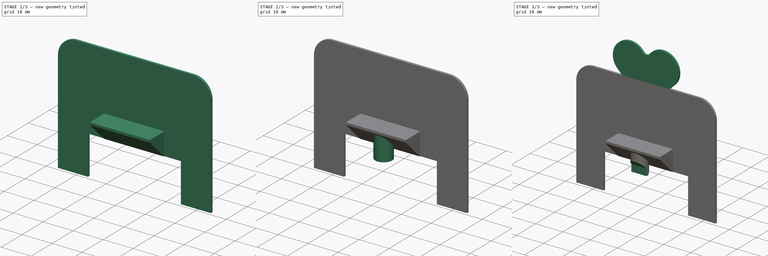
[diagram: build sequence overview — one tinted view per stage of 3, left to right]
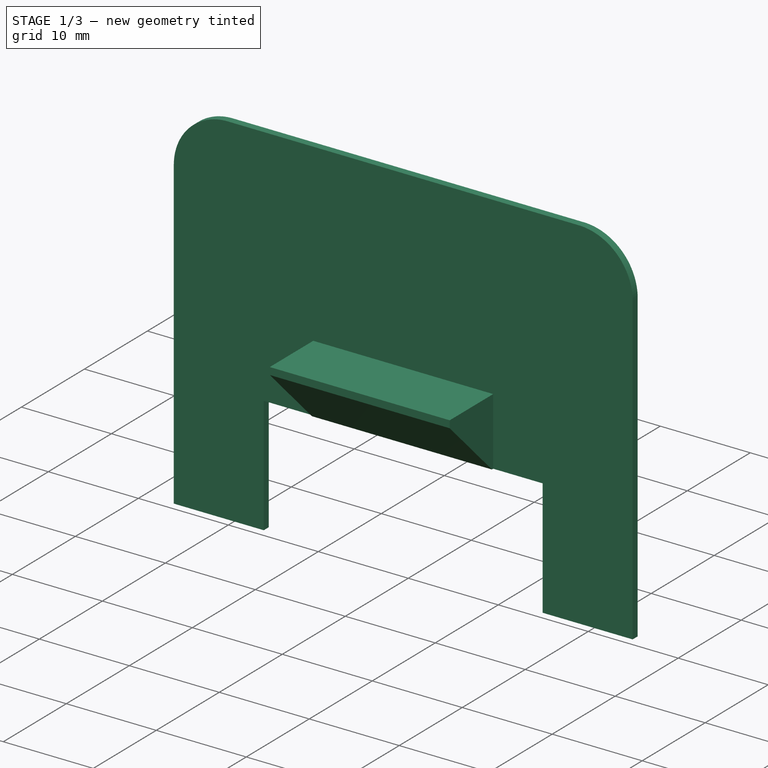
[diagram: stage 1 of 3 — iso view after this stage's code; geometry added in this stage tinted green]
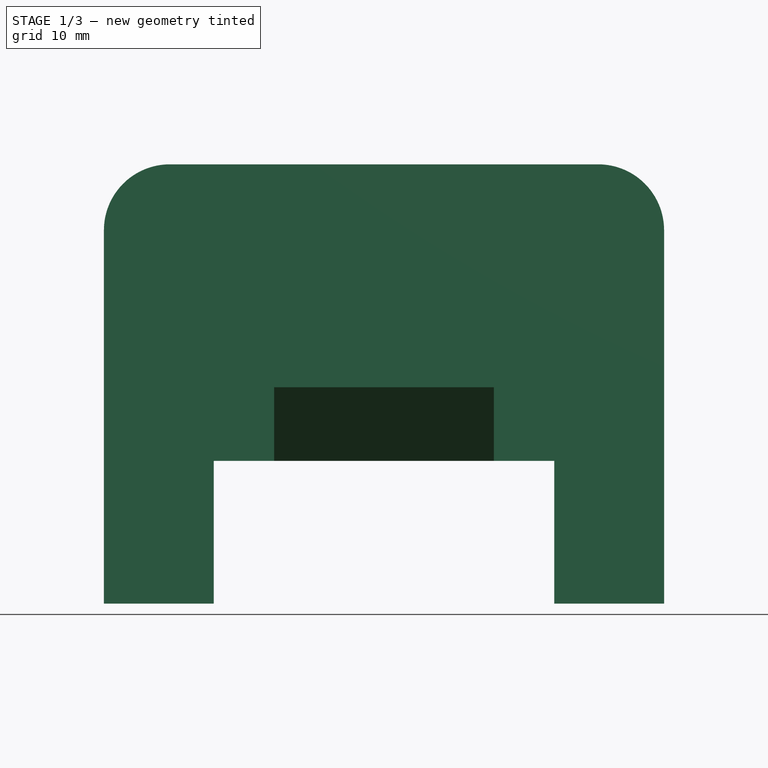
[diagram: stage 1 of 3 — front view after this stage's code; geometry added in this stage tinted green]
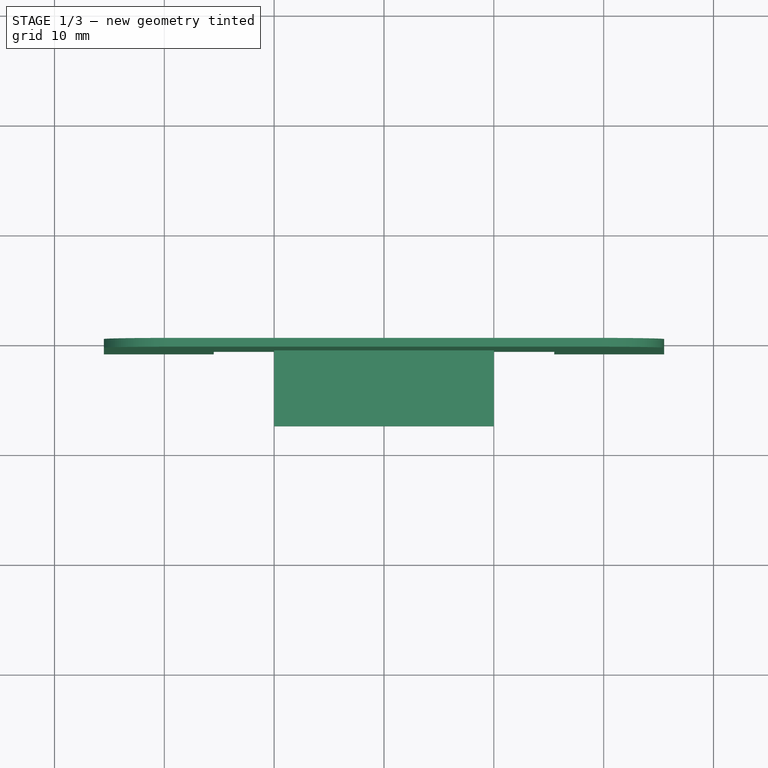
[diagram: stage 1 of 3 — top view after this stage's code; geometry added in this stage tinted green]
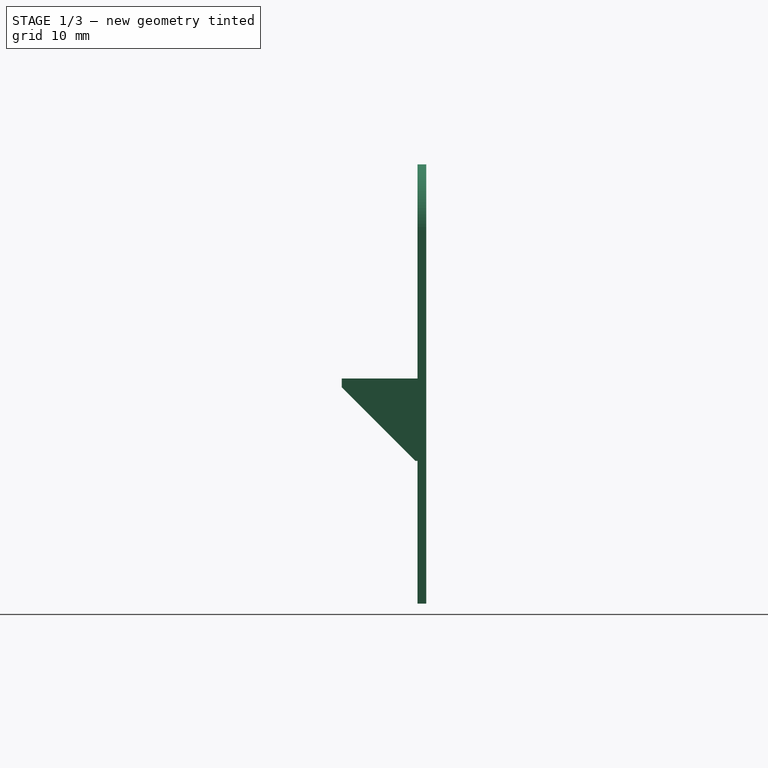
[diagram: stage 1 of 3 — right view after this stage's code; geometry added in this stage tinted green]
FCSTD DOCUMENT  (FreeCAD 0.19R24366 (Git))
Label: escornaface-eyes
License: Creative Commons Attribution-ShareAlike
LicenseURL: http://creativecommons.org/licenses/by-sa/4.0/
objects: Sketcher::SketchObject×5, PartDesign::Pad×4, PartDesign::Pocket×1, PartDesign::CoordinateSystem×1, PartDesign::Body×1, App::Part×1
note: 17 computed .brp shape members not serialized (recipe doc carries the construction recipe); baked Part::Feature solids carry a one-line shape summary decoded from their .brp

FEATURE [Sketcher::SketchObject] Sketch  label="Sketch-base"
  FullyConstrained = true
  MapMode = 5
  Placement = pos=(0,0,0) rot=(1,0,0;1.5708rad)
  Support = -> [XZ_Plane002]
  sketch-geometry (10):
    g0: LineSegment StartX=-25.5 StartY=13.5 StartZ=0 EndX=-25.5 EndY=47.5 EndZ=0
    g1: ArcOfCircle CenterX=-19.5 CenterY=47.5 CenterZ=0 NormalX=0 NormalY=0 NormalZ=1 AngleXU=0 Radius=6 StartAngle=1.5708 EndAngle=3.14159
    g2: LineSegment StartX=-19.5 StartY=53.5 StartZ=0 EndX=19.5 EndY=53.5 EndZ=0
    g3: ArcOfCircle CenterX=19.5 CenterY=47.5 CenterZ=0 NormalX=0 NormalY=0 NormalZ=1 AngleXU=0 Radius=6 StartAngle=5.28e-14 EndAngle=1.5708
    g4: LineSegment StartX=25.5 StartY=47.5 StartZ=0 EndX=25.5 EndY=13.5 EndZ=0
    g5: LineSegment StartX=25.5 StartY=13.5 StartZ=0 EndX=15.5 EndY=13.5 EndZ=0
    g6: LineSegment StartX=15.5 StartY=13.5 StartZ=0 EndX=15.5 EndY=26.5 EndZ=0
    g7: LineSegment StartX=15.5 StartY=26.5 StartZ=0 EndX=-15.5 EndY=26.5 EndZ=0
    g8: LineSegment StartX=-15.5 StartY=26.5 StartZ=0 EndX=-15.5 EndY=13.5 EndZ=0
    g9: LineSegment StartX=-15.5 StartY=13.5 StartZ=0 EndX=-25.5 EndY=13.5 EndZ=0
  constraints (27):
    c: Vertical(g0)
    c: Tangent(g0,g1) = 1.5708
    c: Tangent(g1,g2) = 1.5708
    c: Tangent(g2,g3) = 1.5708
    c: Tangent(g3,g4) = 1.5708
    c: Coincident(g4,g5)
    c: Horizontal(g5)
    c: Coincident(g5,g6)
    c: Vertical(g6)
    c: Coincident(g6,g7)
    c: Horizontal(g7)
    c: Coincident(g7,g8)
    c: Vertical(g8)
    c: Coincident(g8,g9)
    c: Coincident(g9,g0)
    c: Horizontal(g9)
    c: Equal(g9,g5)
    c: Vertical(g4)
    c: Horizontal(g2)
    c: Symmetric(g8,g5,g-2)
    c: Equal(g1,g3)
    c: DistanceX(g0,g3) = 51
    c: DistanceY(g4,g2) = 40
    c: DistanceX(g5,g5) = 10
    c: DistanceY(g6,g6) = 13
    c: DistanceY(g5) = 13.5
    c: Radius(g1) = 6
FEATURE [PartDesign::Pad] Pad  label="Pad-base"
  Direction = (1,1,1)
  Length = 0.8
  Length2 = 100
  Placement = pos=(0,0,0) rot=(1,0,0;1.5708rad)
  Profile = -> Sketch
  Type = 0
FEATURE [Sketcher::SketchObject] Sketch001  label="Sketch-support"
  FullyConstrained = true
  MapMode = 5
  Placement = pos=(0,0,0) rot=(0.57735,0.57735,0.57735;2.0944rad)
  Support = -> [YZ_Plane002]
  sketch-geometry (5):
    g0: LineSegment StartX=-1 StartY=26.5 StartZ=0 EndX=-7.7 EndY=33.2 EndZ=0
    g1: LineSegment StartX=-7.7 StartY=34 StartZ=0 EndX=0 EndY=34 EndZ=0
    g2: LineSegment StartX=0 StartY=34 StartZ=0 EndX=0 EndY=26.5 EndZ=0
    g3: LineSegment StartX=-1 StartY=26.5 StartZ=0 EndX=0 EndY=26.5 EndZ=0
    g4: LineSegment StartX=-7.7 StartY=33.2 StartZ=0 EndX=-7.7 EndY=34 EndZ=0
  constraints (15):
    c: Horizontal(g1)
    c: Coincident(g1,g2)
    c: Vertical(g2)
    c: Angle(g2,g0) = 0.785398
    c: Horizontal(g3)
    c: DistanceY(g1) = 34
    c: Coincident(g0,g3)
    c: Coincident(g2,g3)
    c: DistanceY(g2,g2) = 7.5
    c: PointOnObject(g2,g-2)
    c: Vertical(g4)
    c: Coincident(g1,g4)
    c: Coincident(g0,g4)
    c: DistanceX(g3,g3) = 1
    c: DistanceY(g4,g4) = 0.8
FEATURE [PartDesign::Pad] Pad001  label="Pad-support"
  BaseFeature = -> Pad
  Direction = (1,1,1)
  Length = 20
  Length2 = 100
  Midplane = true
  Placement = pos=(0,0,0) rot=(1,0,0;1.5708rad)
  Profile = -> Sketch001
  Refine = true
  Type = 0
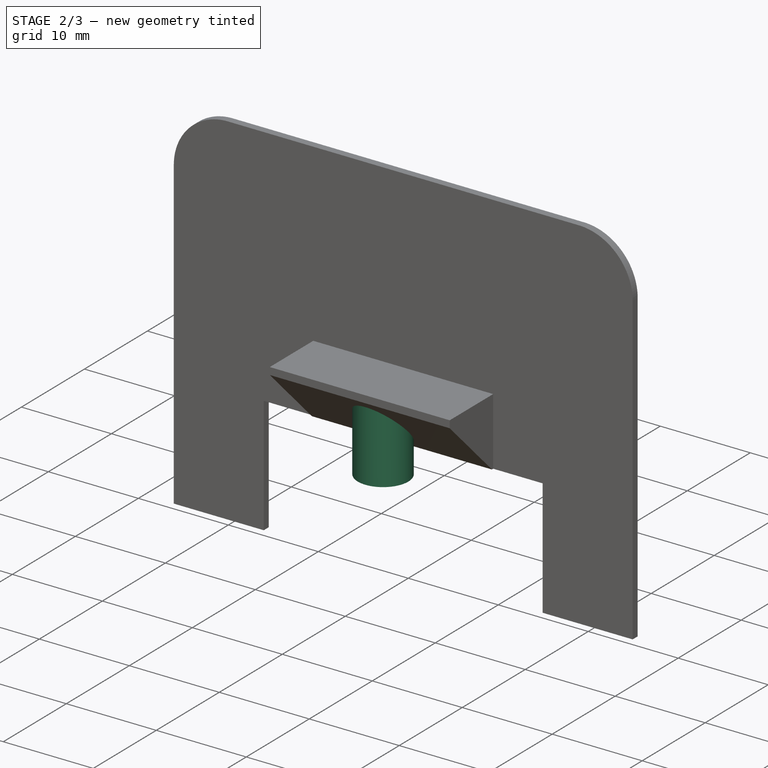
[diagram: stage 2 of 3 — iso view after this stage's code; geometry added in this stage tinted green]
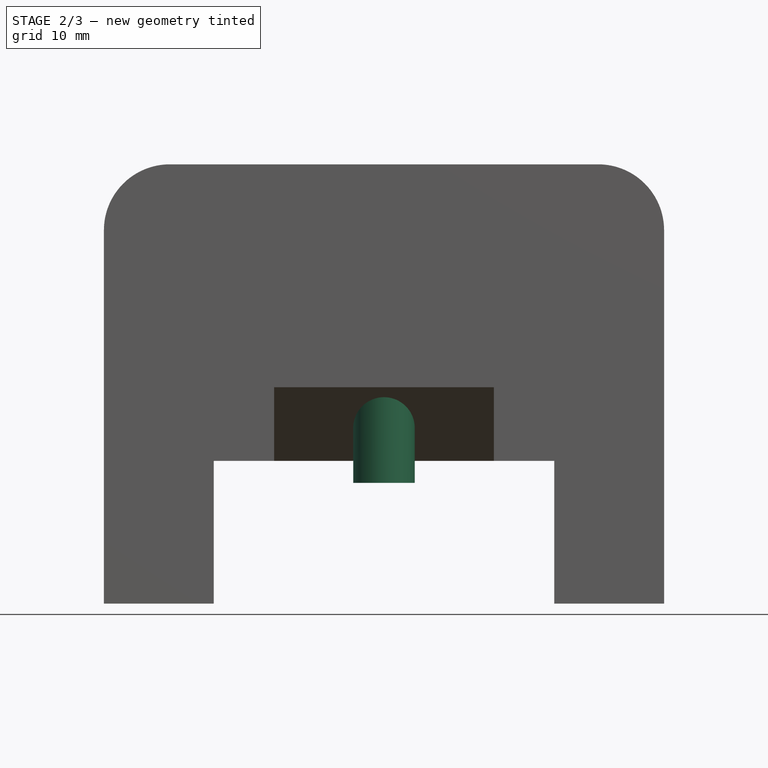
[diagram: stage 2 of 3 — front view after this stage's code; geometry added in this stage tinted green]
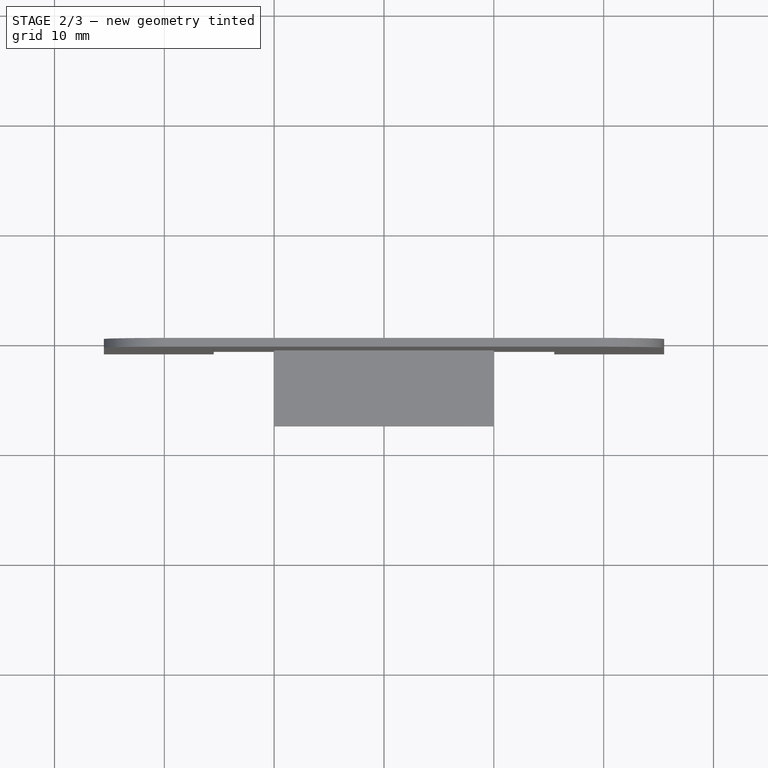
[diagram: stage 2 of 3 — top view after this stage's code; geometry added in this stage tinted green]
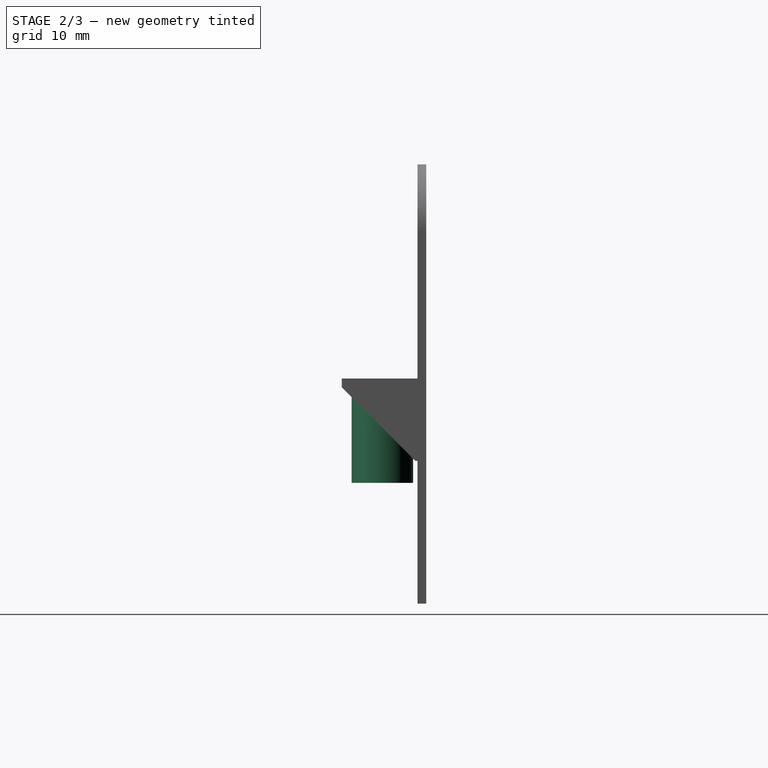
[diagram: stage 2 of 3 — right view after this stage's code; geometry added in this stage tinted green]
FEATURE [Sketcher::SketchObject] Sketch003  label="Sketch-hook"
  FullyConstrained = false
  MapMode = 5
  Placement = pos=(-9.5e-15,2.25e-14,34) rot=(0,0,1;3.14159rad)
  Support = -> [Pad001]
  sketch-geometry (1):
    g0: Circle CenterX=0 CenterY=4 CenterZ=0 NormalX=0 NormalY=0 NormalZ=1 AngleXU=0 Radius=2.8
  constraints (2):
    c: Radius(g0) = 2.8
    c: DistanceY(g0) = 4
FEATURE [PartDesign::Pad] Pad002  label="Pad-hook"
  BaseFeature = -> Pad001
  Direction = (1,1,1)
  Length = 9.5
  Length2 = 100
  Placement = pos=(0,0,0) rot=(1,0,0;1.5708rad)
  Profile = -> Sketch003
  Refine = true
  Reversed = true
  Type = 0
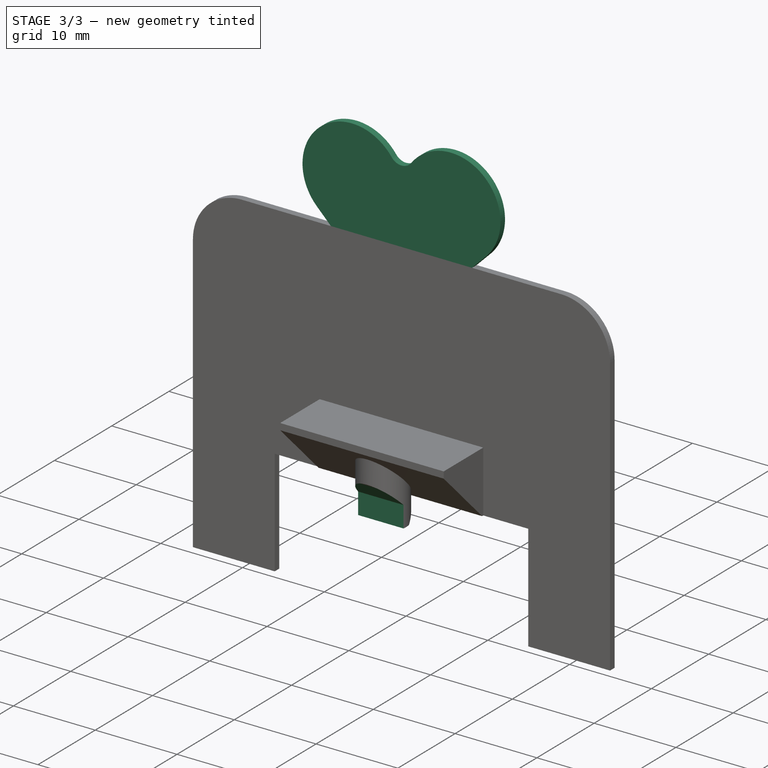
[diagram: stage 3 of 3 — iso view after this stage's code; geometry added in this stage tinted green]
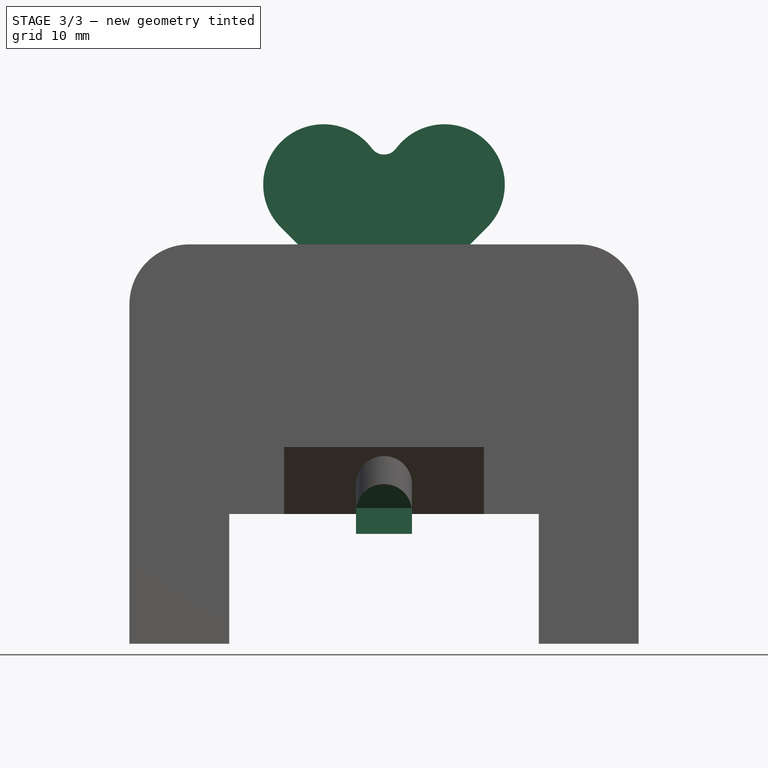
[diagram: stage 3 of 3 — front view after this stage's code; geometry added in this stage tinted green]
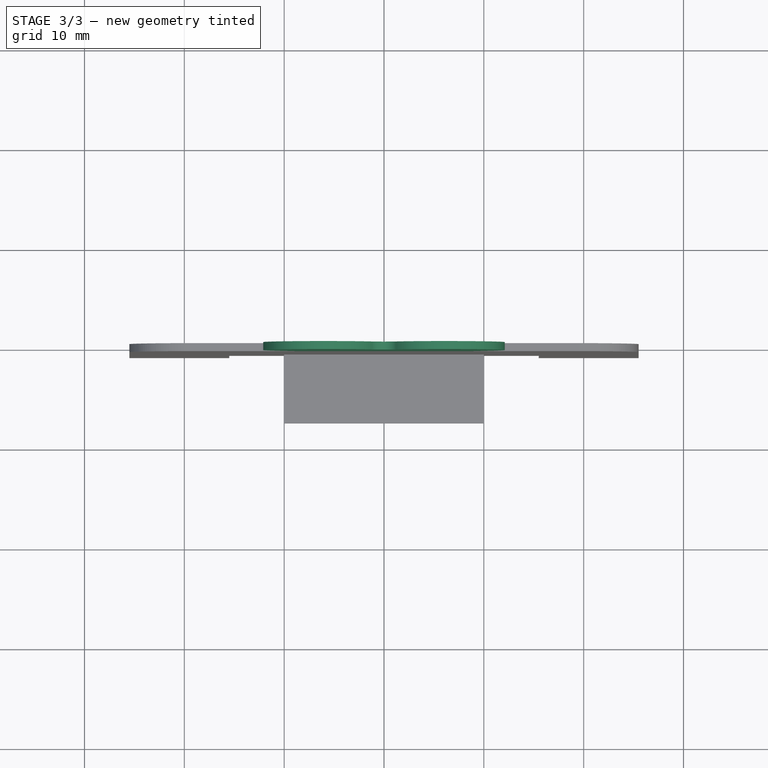
[diagram: stage 3 of 3 — top view after this stage's code; geometry added in this stage tinted green]
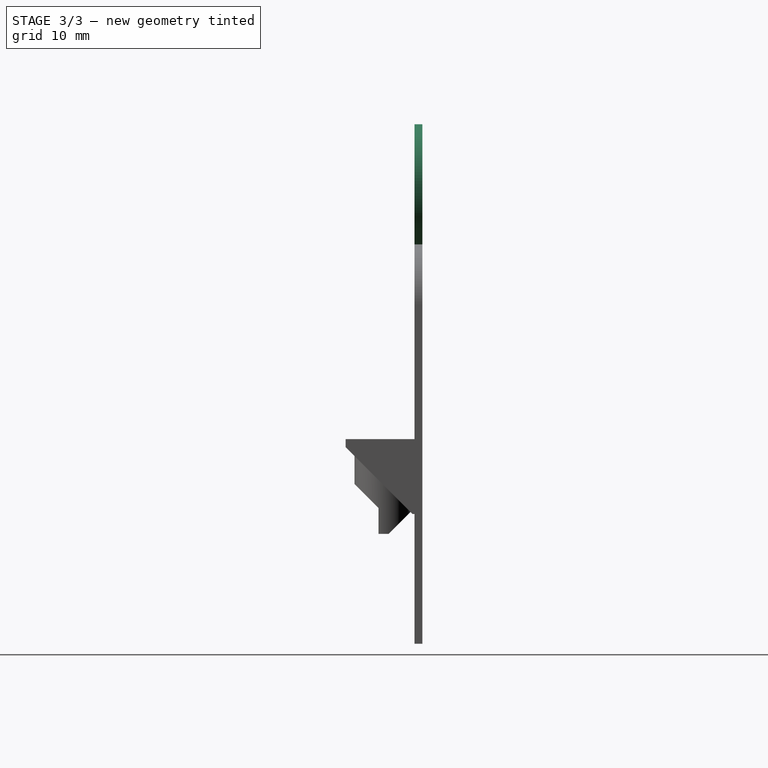
[diagram: stage 3 of 3 — right view after this stage's code; geometry added in this stage tinted green]
FEATURE [Sketcher::SketchObject] Sketch004  label="Sketch-hook-cutout"
  ExternalGeometry = -> [Pad002]
  FullyConstrained = true
  MapMode = 5
  Placement = pos=(0,0,0) rot=(0.57735,0.57735,0.57735;2.0944rad)
  Support = -> [YZ_Plane002]
  sketch-geometry (8):
    g0: LineSegment StartX=-1.2 StartY=26.699 StartZ=0 EndX=-3.399 EndY=24.5 EndZ=0
    g1: LineSegment StartX=-3.399 StartY=24.5 StartZ=0 EndX=-1.2 EndY=24.5 EndZ=0
    g2: LineSegment StartX=-1.2 StartY=24.5 StartZ=0 EndX=-1.2 EndY=26.699 EndZ=0
    g3: LineSegment StartX=-7.7 StartY=30.4 StartZ=0 EndX=-7.7 EndY=24.5 EndZ=0
    g4: LineSegment StartX=-4.4 StartY=27.1 StartZ=0 EndX=-7.7 EndY=30.4 EndZ=0
    g5: LineSegment StartX=-4.4 StartY=27.1 StartZ=0 EndX=-4.4 EndY=24.5 EndZ=0
    g6: LineSegment StartX=-4.4 StartY=24.5 StartZ=0 EndX=-7.7 EndY=24.5 EndZ=0
    g7: LineSegment StartX=-1.2 StartY=26.699 StartZ=0 EndX=-1.2 EndY=26.7 EndZ=0
  constraints (23):
    c: Coincident(g0,g1)
    c: Horizontal(g1)
    c: Coincident(g1,g2)
    c: Vertical(g2)
    c: Coincident(g0,g2)
    c: Angle(g1,g0) = 0.785398
    c: Coincident(g4,g3)
    c: Vertical(g3)
    c: DistanceX(g3,g4) = 3.3
    c: Coincident(g4,g5)
    c: Vertical(g5)
    c: Coincident(g5,g6)
    c: Horizontal(g6)
    c: Coincident(g3,g6)
    c: Angle(g3,g4) = 0.785398
    c: DistanceY(g5,g5) = 2.6
    c: Coincident(g1,g-4)
    c: PointOnObject(g-3,g3)
    c: PointOnObject(g5,g-4)
    c: Coincident(g7,g0)
    c: PointOnObject(g7,g-3)
    c: Vertical(g7)
    c: DistanceY(g7,g7) = 0.001
FEATURE [PartDesign::Pocket] Pocket001  label="Pocket-hook-cutout"
  BaseFeature = -> Pad002
  Length = 6
  Length2 = 100
  Midplane = true
  Placement = pos=(0,0,0) rot=(1,0,0;1.5708rad)
  Profile = -> Sketch004
  Refine = true
  Type = 0
FEATURE [PartDesign::CoordinateSystem] LCS_main
  AttacherType = Attacher::AttachEngine3D
  AttachmentOffset = pos=(0,0,0) rot=(0,1,0;2.35619rad)
  MapMode = 2
  Placement = pos=(-8.2e-15,-4,29.5) rot=(0,0,-1;4.71239rad)
  Support = -> [Pocket001]
FEATURE [Sketcher::SketchObject] Sketch005  label="Sketch-eyes-holder"
  FullyConstrained = true
  MapMode = 5
  Placement = pos=(0,-0.8,0) rot=(1,0,0;1.5708rad)
  Support = -> [Pocket001]
  sketch-geometry (9):
    g0: LineSegment StartX=-7.12263 StartY=52 StartZ=0 EndX=-10.328 EndY=55.2054 EndZ=0
    g1: ArcOfCircle CenterX=-6.05 CenterY=59.4834 CenterZ=0 NormalX=0 NormalY=0 NormalZ=1 AngleXU=0 Radius=6.05 StartAngle=0.64129 EndAngle=3.92699
    g2: Circle CenterX=-6.05 CenterY=59.4834 CenterZ=0 NormalX=0 NormalY=0 NormalZ=1 AngleXU=0 Radius=6.05
    g3: Circle CenterX=6.05 CenterY=59.4834 CenterZ=0 NormalX=0 NormalY=0 NormalZ=1 AngleXU=0 Radius=6.05
    g4: LineSegment StartX=-6.05 StartY=59.4834 StartZ=0 EndX=6.05 EndY=59.4834 EndZ=0
    g5: ArcOfCircle CenterX=-1.7e-15 CenterY=64 CenterZ=0 NormalX=0 NormalY=0 NormalZ=1 AngleXU=0 Radius=1.5 StartAngle=3.78288 EndAngle=5.64189
    g6: ArcOfCircle CenterX=6.05 CenterY=59.4834 CenterZ=0 NormalX=0 NormalY=0 NormalZ=1 AngleXU=0 Radius=6.05 StartAngle=5.49779 EndAngle=8.78349
    g7: LineSegment StartX=10.328 StartY=55.2054 StartZ=0 EndX=7.12263 EndY=52 EndZ=0
    g8: LineSegment StartX=7.12263 StartY=52 StartZ=0 EndX=-7.12263 EndY=52 EndZ=0
  constraints (21):
    c: Tangent(g0,g1) = 1.5708
    c: Tangent(g3,g2)
    c: Equal(g2,g3)
    c: Diameter(g2) = 12.1
    c: Coincident(g4,g2)
    c: Coincident(g4,g3)
    c: Symmetric(g3,g2,g-2)
    c: Coincident(g1,g2)
    c: Tangent(g1,g5) = 1.5708
    c: PointOnObject(g5,g3)
    c: Tangent(g5,g6) = 1.5708
    c: Tangent(g6,g7) = 1.5708
    c: Coincident(g7,g8)
    c: Coincident(g8,g0)
    c: PointOnObject(g0,g2)
    c: Coincident(g6,g3)
    c: Perpendicular(g7,g0)
    c: Symmetric(g0,g7,g-2)
    c: Radius(g5) = 1.5
    c: DistanceY(g7,g5) = 12
    c: DistanceY(g7) = 52
FEATURE [PartDesign::Pad] Pad003  label="Pad-eyes-holder"
  BaseFeature = -> Pocket001
  Direction = (1,1,1)
  Length = 0.8
  Length2 = 100
  Placement = pos=(0,0,0) rot=(1,0,0;1.5708rad)
  Profile = -> Sketch005
  Refine = true
  Reversed = true
  Type = 0
FEATURE [PartDesign::Body] Body  label="Body-escornaface"
  Group = -> [Sketch,Pad,Sketch001,Pad001,Sketch003,Pad002,Sketch004,Pocket001,Sketch005,Pad003]
  Origin = -> Origin002
  Tip = -> Pad003
FEATURE [App::Part] Part  label="Part-escornaface"
  Group = -> [Body,LCS_main]
  Origin = -> Origin001
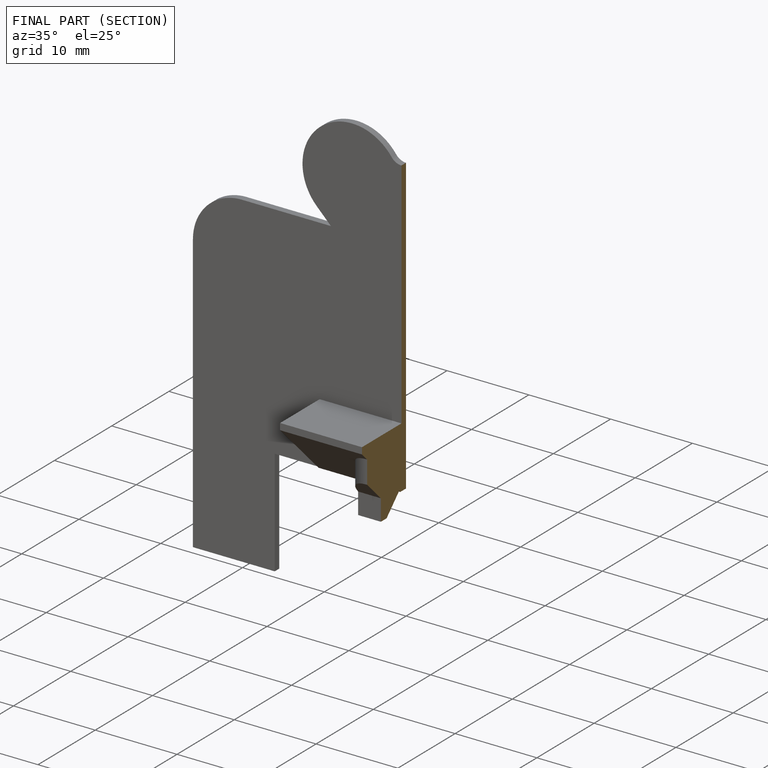
[diagram: finished part — half-section view (interior)]
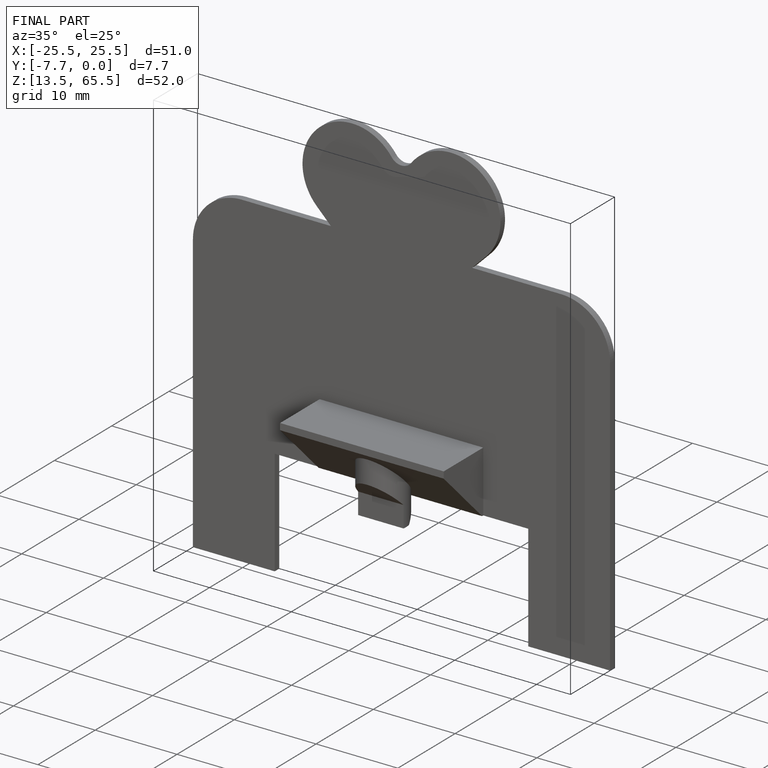
[diagram: finished part — iso view with bounding-box wireframe]
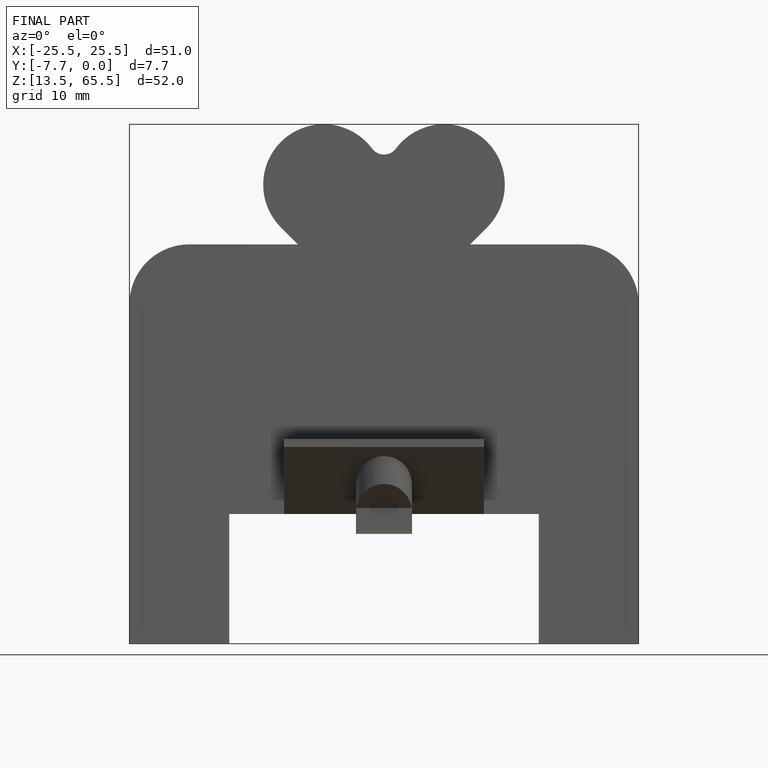
[diagram: finished part — front view with bounding-box wireframe]
